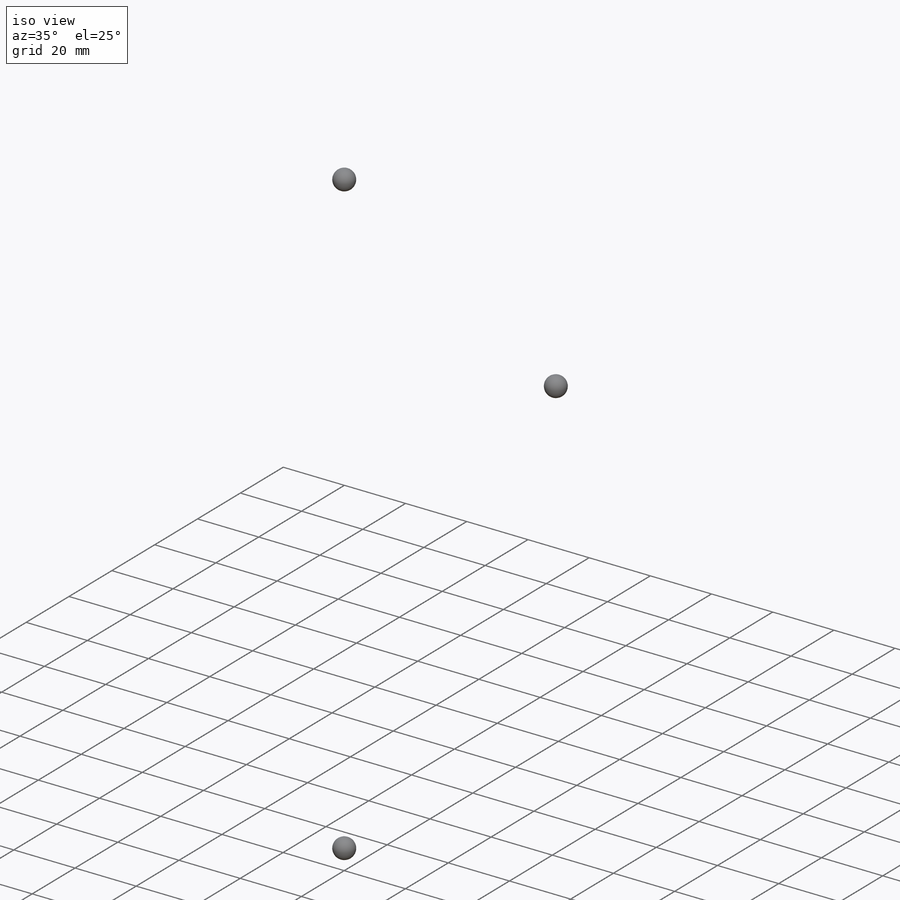
[diagram: iso view]
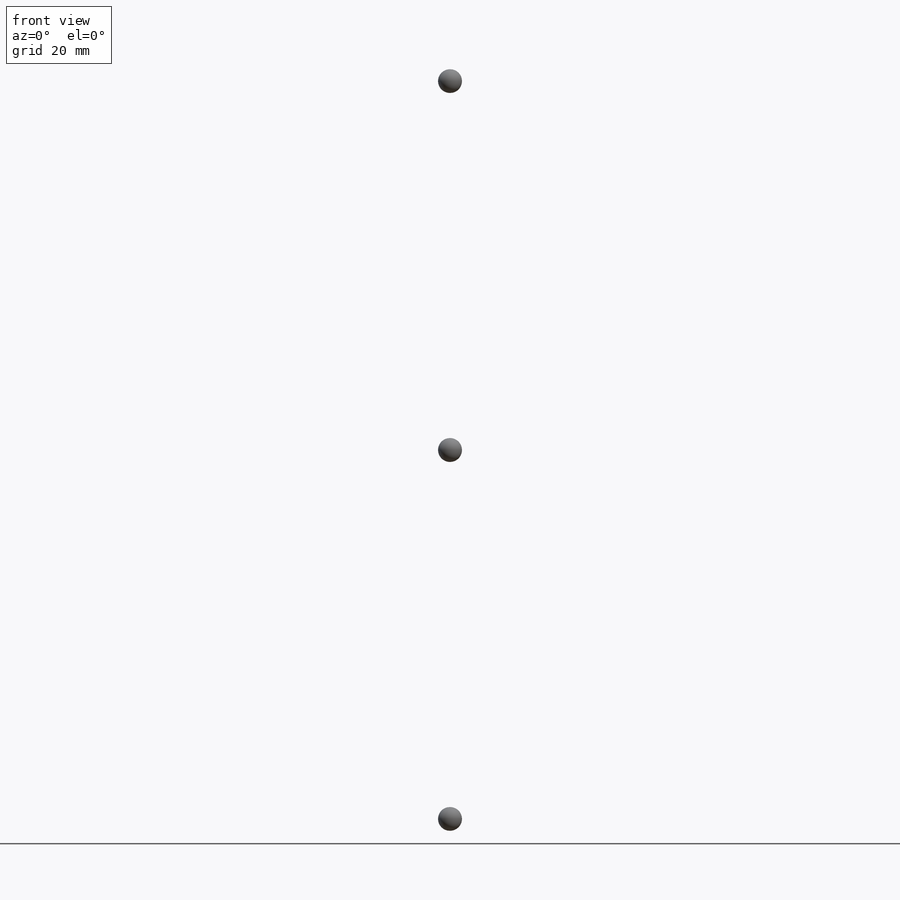
[diagram: front view]
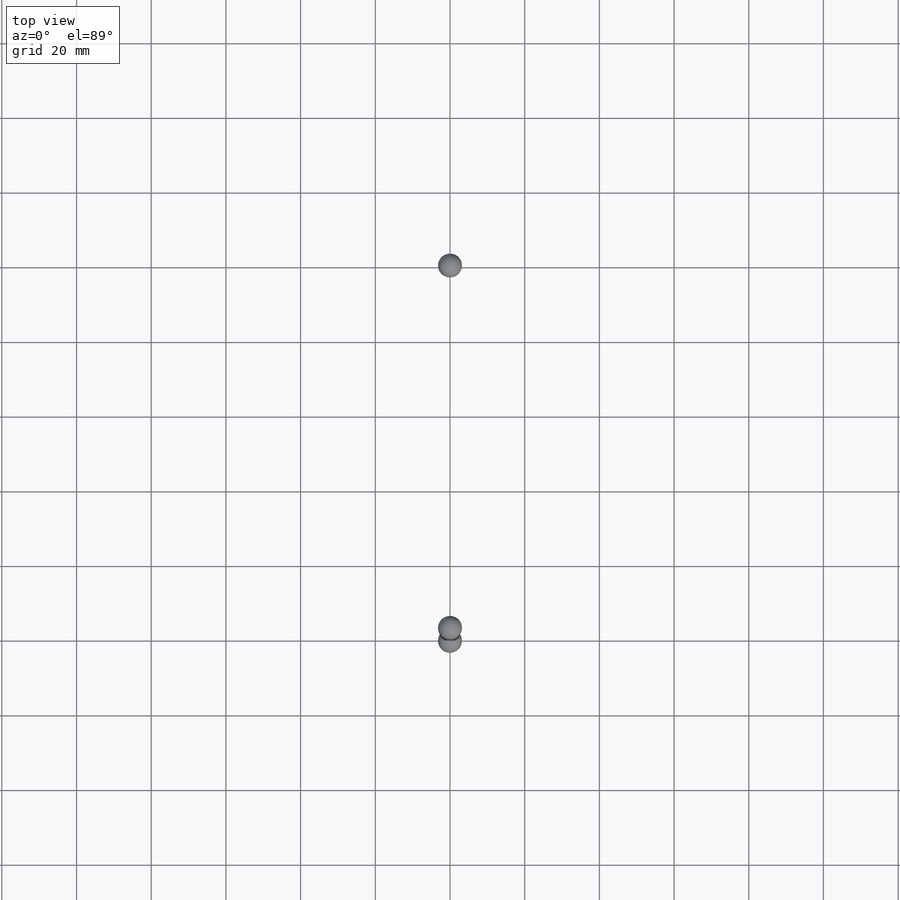
[diagram: top view]
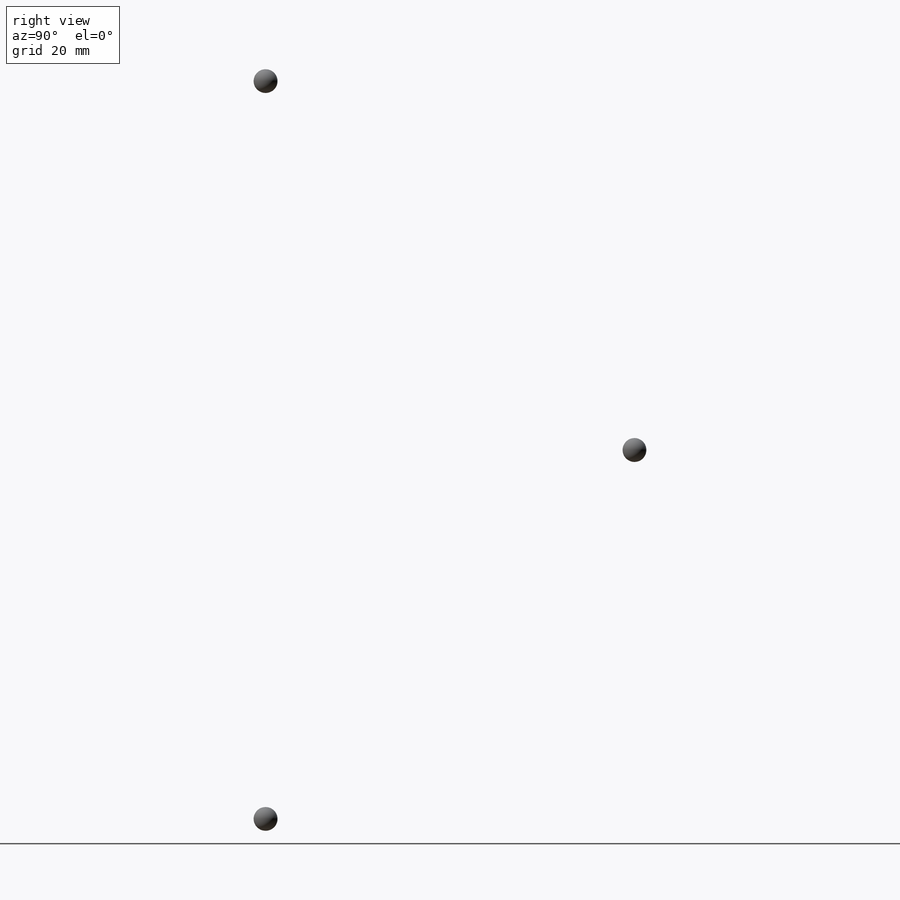
[diagram: right view]
SOLIDWORKS PART (.sldprt)
format: sldprt  version: not decoded by parser v0  size: 1,192,960 bytes
history: native  units: mm
features: sketch x12, pattern_circular x6, cut_extrude x5, extrude x2, fillet x2, plane x2, material x1, revolve x1 + 1 further entry (+12 scaffold rows collapsed)
feature tree (44):
  scaffold x12  (default folders/planes/origin — collapsed)
  material  "Material <not specified>"
  sketch  "Sketch1"  dims[c1.D1=223.774mm c1.D7=1.5748mm c1.D11=1.0414mm c2.D1=114.3mm c2.D2=146.05mm c2.D3=8.128mm c2.D4=4.953mm c2.D5=231.521mm c2.D6=98.806mm c2.D7=~3.600434mm c2.D8=~220.858343mm c2.D9=0.889mm c2.D10=~5.123736mm c3.D10=135.0deg c3.D11=~187.548429mm c3.D12=~189.534547mm c3.D13=~3.526944mm c4.D13=~91.320779deg c5.D13=~0.864165mm c5.D14=~1.757545mm c5.D3=8.128mm c5.D1=360.0deg c6.D3=0.889mm c6.D4=1.0mm c6.D7=0.0mm]
  sketch  "Sketch1<5>"  dims[D1=360.0deg D3=0.889mm D4=1.0mm D7=0.0mm]
  sketch  "Sketch2"  dims[c1.D1=~18.944219mm c1.D2=19.05mm c2.D1=156.8704mm c2.D3=~38.876779mm c3.D3=22.5deg]
  cut_extrude  "Cut-Extrude1"  [1 undecoded]
  sketch  "Sketch3"  dims[D1=156.8704mm D2=7.1374mm]
  cut_extrude  "Cut-Extrude2"  [1 undecoded]
  pattern_circular  "CirPattern1"  Count=4 Angle=360deg
  sketch  "Sketch4"  dims[D1=131.4704mm D2=5.1562mm]
  cut_extrude  "Cut-Extrude3"  [1 undecoded]
  pattern_circular  "CirPattern2"  Count=4 Angle=360deg
  sketch  "Sketch5"  dims[c1.D2=3.302mm c1.D3=3.302mm c1.D1=~35.643141mm c2.D1=45.0deg c2.D3=156.8704mm]
  cut_extrude  "Cut-Extrude4"  [1 undecoded]
  pattern_circular  "CirPattern3"  Count=4 Angle=360deg
  sketch  "Sketch6"  dims[D1=6.35mm]
  revolve  "Revolve1"  Angle=360deg
  pattern_circular  "CirPattern5"  Count=4 Angle=360deg
  sketch  "Sketch7"  dims[c1.D2=171.7548mm c1.D1=~3.673161mm c2.D1=90.0deg c3.D1=~3.673161mm c4.D1=90.0deg c5.D1=2.54mm c5.D2=2.54mm c5.D3=4.445mm c6.D1=3.81mm c6.D3=6.35mm]
  extrude  "Extrude1"  Depth=1.27mm
  sketch  "Sketch8"  dims[D1=0.889mm]
  cut_extrude  "Cut-Extrude5"  Depth=0.381mm
  fillet  "Fillet1"  Radius=0.635mm
  fillet  "Fillet2"  Radius=0.1905mm
  pattern_circular  "CirPattern6"  Count=4 Angle=360deg
  plane  "Plane1"
  plane  "Plane2"  Offset=85.8774mm
  sketch  "Sketch9"  dims[c1.D2=1.651mm c1.D1=19.05mm c1.D3=6.858mm c1.D4=~5.711298mm c2.D4=~114.777421deg c2.D5=~8.730295mm c2.D6=2.54mm]
  extrude  "Extrude2"  Depth=6.35mm
  pattern_circular  "CirPattern7"  Count=4 Angle=360deg
  sketch  "Sketch10"
  "Axis2"
  sketch  "Sketch11"  dims[D1=4.0]
decode coverage: 23 of 28 modeling features carry decoded parameters; 1 rows unclassified (native names shown)
note: ~ marks probable driven/reference dimensions
note: 4 parameter values undecoded
summary: no parameter record found for 4 features
note: suppression state not decoded; provenance and decode notes live in map.json
